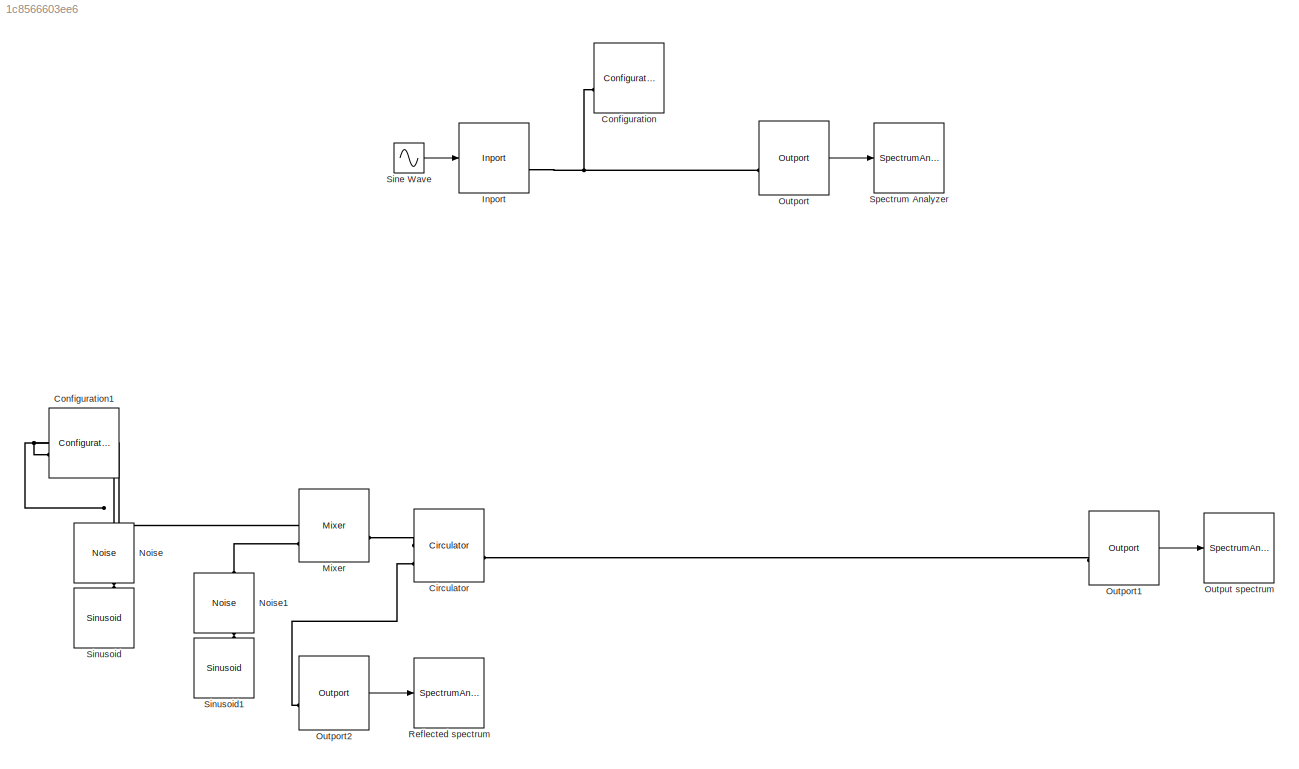
MODEL slx_1c8566603ee6
KIND model
CONFIG AbsTol = auto
CONFIG EnableMultiTasking = off
CONFIG FixedStep = auto
CONFIG MaxStep = auto
CONFIG MinStep = auto
CONFIG RelTol = 1e-3
CONFIG SampleTimeConstraint = Unconstrained
CONFIG SolverName = VariableStepAuto
CONFIG StartTime = 0.0
CONFIG StopTime = 10.0
BLOCK [Reference] Circulator  REF=simrfV2junction1/Circulator
  SourceBlock = simrfV2junction1/Circulator
  SourceType = Ideal Circulators
  UserDataPersistent = on
BLOCK [Reference] Configuration  REF=simrfV2util1/Configuration
  Commented = on
  SourceBlock = simrfV2util1/Configuration
  SourceType = Configuration
BLOCK [Reference] Configuration1  REF=simrfV2util1/Configuration
  SourceBlock = simrfV2util1/Configuration
  SourceType = Configuration
BLOCK [Reference] Inport  REF=simrfV2util1/Inport
  Commented = on
  SourceBlock = simrfV2util1/Inport
  SourceType = Inport
BLOCK [Reference] Mixer  REF=simrfV2elements/Mixer
  SourceBlock = simrfV2elements/Mixer
  SourceType = Mixer
BLOCK [Reference] Noise  REF=simrfV2sources1/Noise
  NameLocation = right
  SourceBlock = simrfV2sources1/Noise
  SourceType = Noise Source
BLOCK [Reference] Noise1  REF=simrfV2sources1/Noise
  NameLocation = right
  SourceBlock = simrfV2sources1/Noise
  SourceType = Noise Source
BLOCK [Reference] Outport  REF=simrfV2util1/Outport
  Commented = on
  SourceBlock = simrfV2util1/Outport
  SourceType = Outport
BLOCK [Reference] Outport1  REF=simrfV2util1/Outport
  SourceBlock = simrfV2util1/Outport
  SourceType = Outport
BLOCK [Reference] Outport2  REF=simrfV2util1/Outport
  SourceBlock = simrfV2util1/Outport
  SourceType = Outport
BLOCK [SpectrumAnalyzer] Output spectrum
  ScopeSpecificationString = spbscopes.SpectrumAnalyzerBlockCfg('CurrentConfiguration', extmgr.ConfigurationSet(extmgr.Configuration('Core','General UI',true),extmgr.Configuration('Core','Source UI',true),extmgr.Configuration('Sources','WiredSimulink',true),extmgr.Configuration('Visuals','Spectrum',true,'AxesProperties',struct('Color',{[0 0 0],[0 0 0]},'XColor',{[0.686274509803922 0.686274509803922 0.686274509803922],[0.68627...<+2267ch>
  Tag = simrfV2util1/Spectrum\nAnalyzer
BLOCK [SpectrumAnalyzer] Reflected spectrum
  ScopeSpecificationString = spbscopes.SpectrumAnalyzerBlockCfg('CurrentConfiguration', extmgr.ConfigurationSet(extmgr.Configuration('Core','General UI',true),extmgr.Configuration('Core','Source UI',true),extmgr.Configuration('Sources','WiredSimulink',true),extmgr.Configuration('Visuals','Spectrum',true,'AxesProperties',struct('Color',{[0 0 0],[0 0 0]},'XColor',{[0.686274509803922 0.686274509803922 0.686274509803922],[0.68627...<+2265ch>
  Tag = simrfV2util1/Spectrum\nAnalyzer
BLOCK [Sin] Sine Wave
  Commented = on
  Frequency = 2*pi*1000
  SampleTime = 0
BLOCK [Reference] Sinusoid  REF=simrfV2sources1/Sinusoid
  NameLocation = right
  SourceBlock = simrfV2sources1/Sinusoid
  SourceType = Sinusoidal Source
BLOCK [Reference] Sinusoid1  REF=simrfV2sources1/Sinusoid
  NameLocation = right
  SourceBlock = simrfV2sources1/Sinusoid
  SourceType = Sinusoidal Source
BLOCK [SpectrumAnalyzer] Spectrum Analyzer
  Commented = on
  ScopeSpecificationString = spbscopes.SpectrumAnalyzerBlockCfg('CurrentConfiguration', extmgr.ConfigurationSet(extmgr.Configuration('Core','General UI',true),extmgr.Configuration('Core','Source UI',true),extmgr.Configuration('Sources','WiredSimulink',true),extmgr.Configuration('Visuals','Spectrum',true,'AxesProperties',struct('Color',{[0 0 0],[0 0 0]},'XColor',{[0.686274509803922 0.686274509803922 0.686274509803922],[0.68627...<+2167ch>
  Tag = simrfV2util1/Spectrum\nAnalyzer
LINE Outport1:1 -> Output spectrum:1
LINE Outport2:1 -> Reflected spectrum:1
LINE Outport:1 -> Spectrum Analyzer:1
LINE Sine Wave:1 -> Inport:1
PLINE Circulator:LConn1 -- Mixer:RConn1
PLINE Circulator:LConn2 -- Outport2:LConn1
PLINE Circulator:RConn1 -- Outport1:LConn1
PNET net1: Configuration1:LConn1 -- Mixer:LConn1 -- Noise:LConn1
PNET net2: Configuration:LConn1 -- Inport:RConn1 -- Outport:LConn1
PLINE Mixer:LConn2 -- Noise1:LConn1
PLINE Noise1:RConn1 -- Sinusoid1:LConn1
PLINE Noise:RConn1 -- Sinusoid:LConn1
note: PNET lines group multi-terminal physical nets as a canonical sorted terminal list (undirected conserving connections); 2-terminal nets keep the pairwise PLINE form
